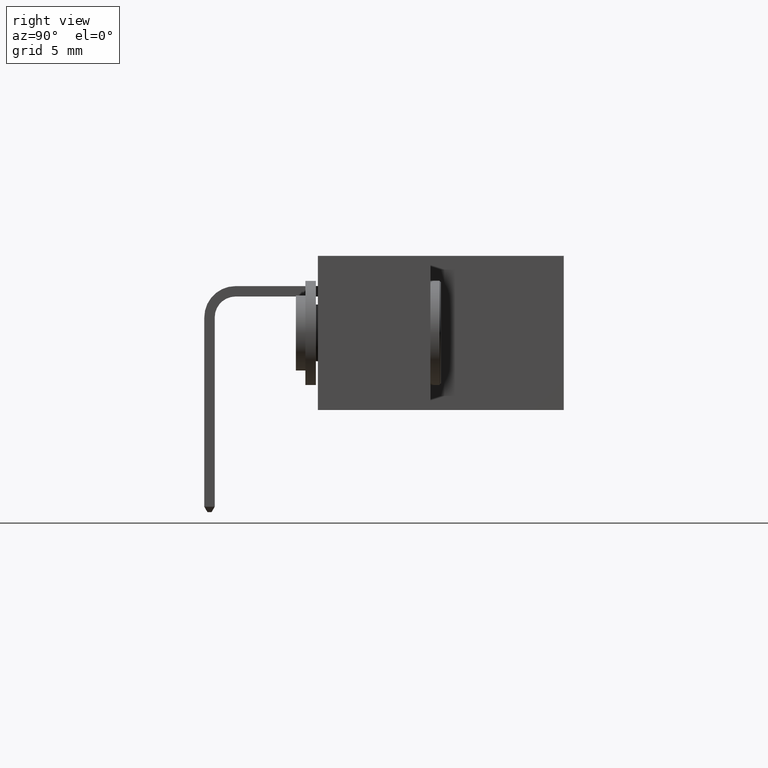
[diagram: clean part render]
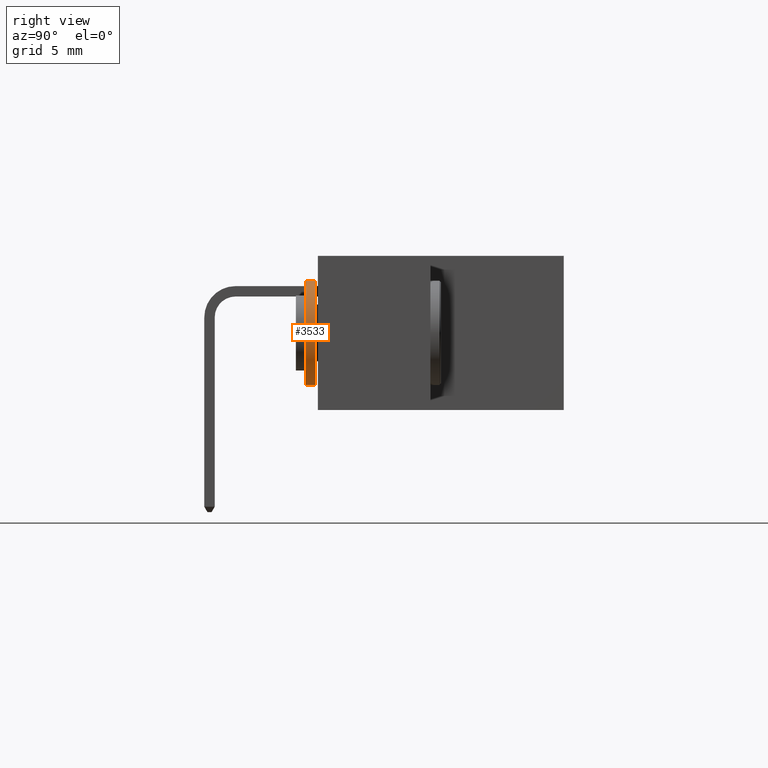
[diagram: same view with one face highlighted and labeled with its STEP entity id]
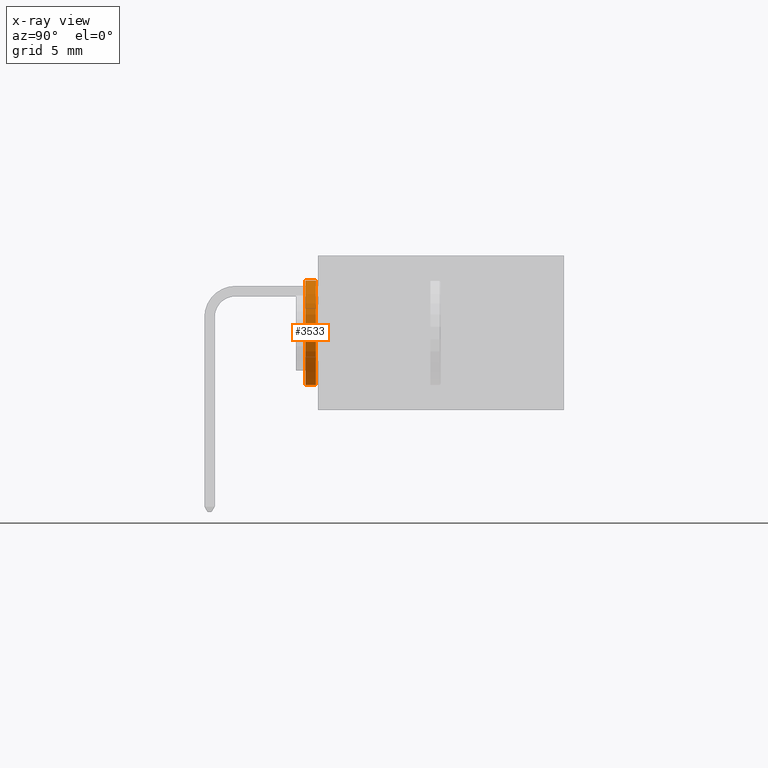
[diagram: x-ray of the same camera — body ghosted, the highlighted face saturated]
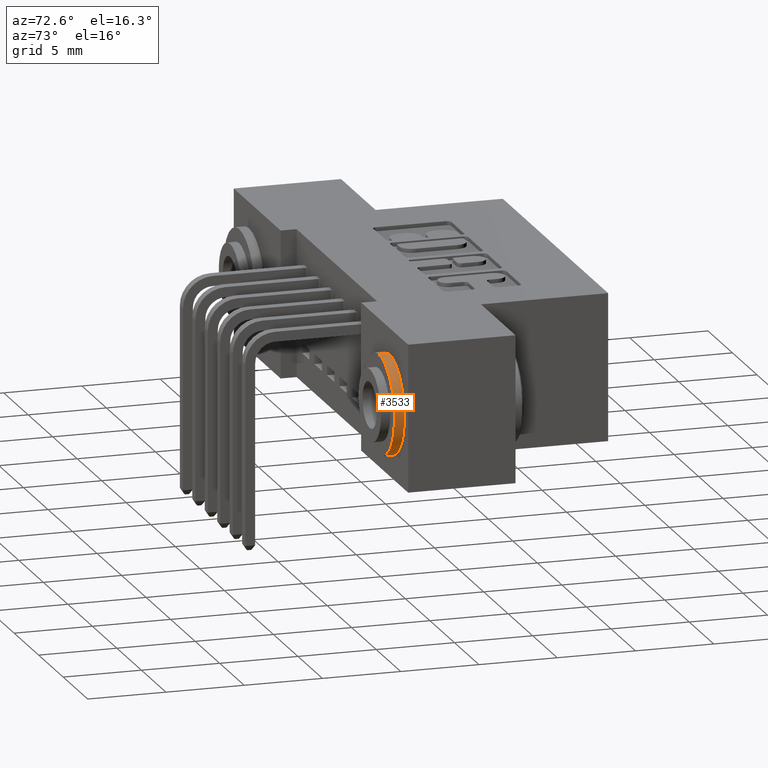
[diagram: same view with one face highlighted and labeled with its STEP entity id]
A machine part, right view. The second image highlights one B-rep face of the part: STEP entity #3533.
The next image is the same camera in x-ray: the body ghosted, the highlighted face saturated — about 0% of this face is hidden behind the body in this view.
A second angle (auxiliary view) of the same face is appended — the face is thin or edge-on in the first view.
In plain terms, the highlighted cylindrical surface (partial cylindrical patch) has radius 3.175 mm, axis along (0, 1, -0).
Its self-contained STEP definition (entity closure, byte-faithful):
#213 = CARTESIAN_POINT ( 'NONE',  ( -1.042288994492356400E-017, 0.3250000000000000100, 0.1249999999999999200 ) ) ;
#220 = ORIENTED_EDGE ( 'NONE', *, *, #306, .T. ) ;
#306 = EDGE_CURVE ( 'NONE', #6560, #8179, #1672, .T. ) ;
#632 = CARTESIAN_POINT ( 'NONE',  ( 2.511632912116119900E-018, 0.2999999999999999900, -0.1250000000000001900 ) ) ;
#901 = DIRECTION ( 'NONE',  ( 4.371503159461561800E-016, -1.000000000000000000, 1.688441150392046800E-016 ) ) ;
#997 = DIRECTION ( 'NONE',  ( -1.129704313855263600E-016, -2.731847993664262200E-016, 1.000000000000000000 ) ) ;
#1206 = DIRECTION ( 'NONE',  ( -4.371503159461561300E-016, 1.000000000000000000, -1.688441150392046800E-016 ) ) ;
#1323 = CARTESIAN_POINT ( 'NONE',  ( -1.707404996040164500E-017, 0.2999999999999999900, -1.365923996832131600E-016 ) ) ;
#1415 = AXIS2_PLACEMENT_3D ( 'NONE', #4422, #4407, #4367 ) ;
#1529 = EDGE_CURVE ( 'NONE', #7465, #5154, #8508, .T. ) ;
#1672 = LINE ( 'NONE', #4529, #5157 ) ;
#1723 = DIRECTION ( 'NONE',  ( 4.371503159461561800E-016, -1.000000000000000000, 1.688441150392046800E-016 ) ) ;
#2212 = CARTESIAN_POINT ( 'NONE',  ( -2.952746037210843500E-018, 0.3250000000000000100, -0.1250000000000001900 ) ) ;
#2232 = ORIENTED_EDGE ( 'NONE', *, *, #3778, .T. ) ;
#2743 = AXIS2_PLACEMENT_3D ( 'NONE', #6912, #3409, #8880 ) ;
#3119 = VECTOR ( 'NONE', #1723, 39.37007874015748100 ) ;
#3409 = DIRECTION ( 'NONE',  ( 4.371503159461561300E-016, -1.000000000000000000, 1.688441150392046800E-016 ) ) ;
#3533 = ADVANCED_FACE ( 'NONE', ( #7681 ), #3838, .T. ) ;
#3778 = EDGE_CURVE ( 'NONE', #8179, #5154, #8885, .T. ) ;
#3838 = CYLINDRICAL_SURFACE ( 'NONE', #2743, 0.1250000000000000600 ) ;
#4133 = CARTESIAN_POINT ( 'NONE',  ( 2.511632912116134900E-018, 0.3250000000000000100, -0.1250000000000001900 ) ) ;
#4367 = DIRECTION ( 'NONE',  ( -1.129704313855263600E-016, 0.0000000000000000000, 1.000000000000000000 ) ) ;
#4407 = DIRECTION ( 'NONE',  ( -4.371503159461561300E-016, 1.000000000000000000, -1.688441150392046800E-016 ) ) ;
#4422 = CARTESIAN_POINT ( 'NONE',  ( -1.707404996040164500E-017, 0.3250000000000000100, -1.365923996832131600E-016 ) ) ;
#4529 = CARTESIAN_POINT ( 'NONE',  ( -1.588726889425052500E-017, 0.3250000000000000100, 0.1249999999999999200 ) ) ;
#5154 = VERTEX_POINT ( 'NONE', #632 ) ;
#5157 = VECTOR ( 'NONE', #901, 39.37007874015748100 ) ;
#5368 = ORIENTED_EDGE ( 'NONE', *, *, #6007, .F. ) ;
#5514 = CIRCLE ( 'NONE', #1415, 0.1250000000000000600 ) ;
#6007 = EDGE_CURVE ( 'NONE', #6560, #7465, #5514, .T. ) ;
#6267 = ORIENTED_EDGE ( 'NONE', *, *, #1529, .F. ) ;
#6560 = VERTEX_POINT ( 'NONE', #213 ) ;
#6867 = AXIS2_PLACEMENT_3D ( 'NONE', #1323, #1206, #997 ) ;
#6912 = CARTESIAN_POINT ( 'NONE',  ( -1.707404996040164500E-017, 0.3250000000000000100, -1.365923996832131600E-016 ) ) ;
#7465 = VERTEX_POINT ( 'NONE', #4133 ) ;
#7681 = FACE_OUTER_BOUND ( 'NONE', #7715, .T. ) ;
#7715 = EDGE_LOOP ( 'NONE', ( #5368, #220, #2232, #6267 ) ) ;
#8179 = VERTEX_POINT ( 'NONE', #8948 ) ;
#8508 = LINE ( 'NONE', #2212, #3119 ) ;
#8880 = DIRECTION ( 'NONE',  ( 1.129704313855263600E-016, 0.0000000000000000000, -1.000000000000000000 ) ) ;
#8885 = CIRCLE ( 'NONE', #6867, 0.1250000000000000600 ) ;
#8948 = CARTESIAN_POINT ( 'NONE',  ( -1.042288994492357900E-017, 0.3000000000000000400, 0.1249999999999999200 ) ) ;